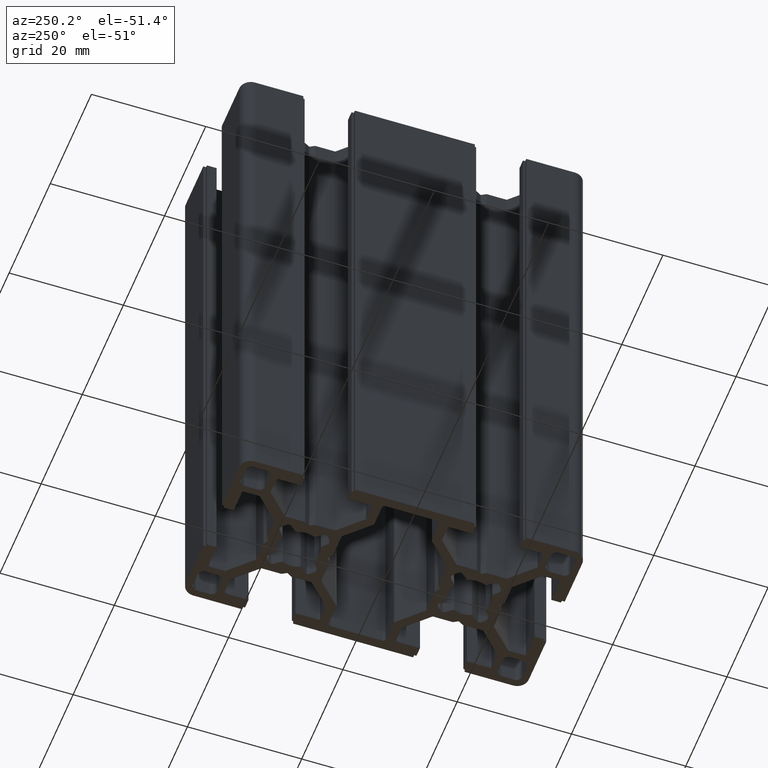
[diagram: clean part render]
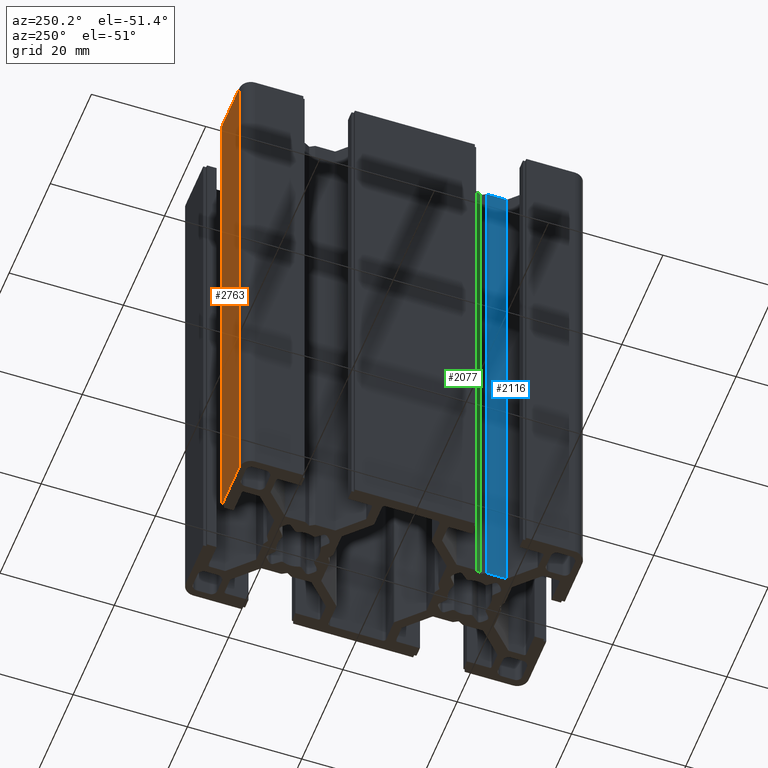
[diagram: same view with three faces highlighted in distinct colors, each labeled with its STEP entity id]
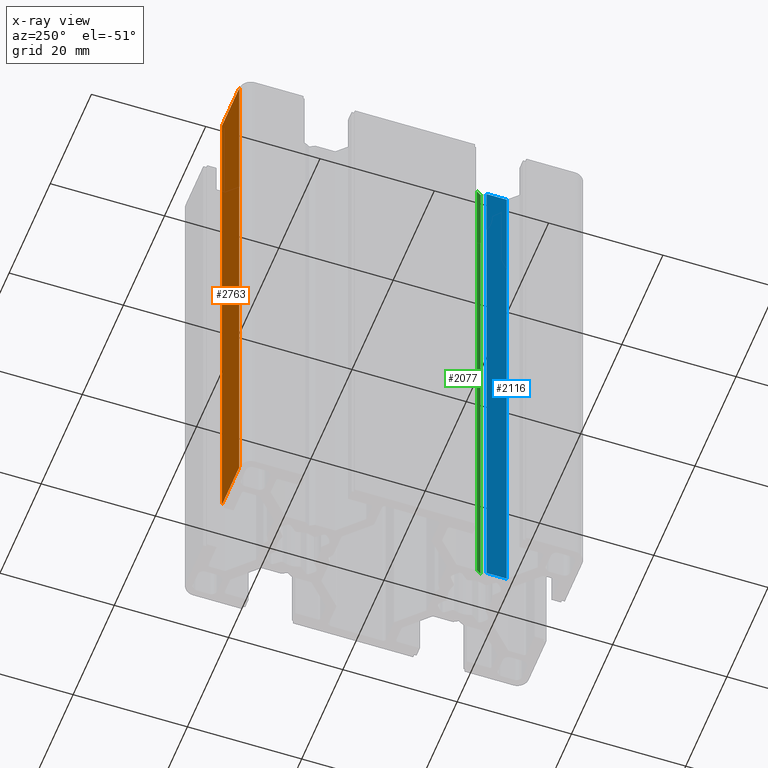
[diagram: x-ray of the same camera — body ghosted, the three highlighted faces saturated]
A machine part, auxiliary view with three faces highlighted in distinct colors.
The next image is the same camera in x-ray (body ghosted, the three faces saturated) — at least one of them is partly hidden behind the body in this view.
Their STEP definitions:

[orange] entity #2763 — the highlighted planar face has unit normal (0, -1, 0).
#475 = VERTEX_POINT ( 'NONE', #3832 ) ;
#901 = VERTEX_POINT ( 'NONE', #4618 ) ;
#915 = EDGE_CURVE ( 'NONE', #901, #475, #4650, .T. ) ;
#1249 = EDGE_CURVE ( 'NONE', #1256, #1321, #5259, .T. ) ;
#1256 = VERTEX_POINT ( 'NONE', #5245 ) ;
#1321 = VERTEX_POINT ( 'NONE', #5357 ) ;
#1870 = EDGE_CURVE ( 'NONE', #475, #1321, #6343, .T. ) ;
#2721 = EDGE_LOOP ( 'NONE', ( #2748, #2762, #2764, #2750 ) ) ;
#2748 = ORIENTED_EDGE ( 'NONE', *, *, #1249, .T. ) ;
#2750 = ORIENTED_EDGE ( 'NONE', *, *, #2757, .T. ) ;
#2757 = EDGE_CURVE ( 'NONE', #901, #1256, #7680, .T. ) ;
#2762 = ORIENTED_EDGE ( 'NONE', *, *, #1870, .F. ) ;
#2763 = ADVANCED_FACE ( 'NONE', ( #7681 ), #7676, .F. ) ;
#2764 = ORIENTED_EDGE ( 'NONE', *, *, #915, .F. ) ;
#3832 = CARTESIAN_POINT ( 'NONE',  ( -13.00000000000000200, 30.00000000000000000, 100.0000000000000000 ) ) ;
#4618 = CARTESIAN_POINT ( 'NONE',  ( -4.499999999999992900, 30.00000000000000000, 100.0000000000000000 ) ) ;
#4638 = DIRECTION ( 'NONE',  ( -1.000000000000000000, 0.0000000000000000000, 0.0000000000000000000 ) ) ;
#4639 = VECTOR ( 'NONE', #4638, 1000.000000000000000 ) ;
#4640 = CARTESIAN_POINT ( 'NONE',  ( -4.499999999999992900, 30.00000000000000000, 100.0000000000000000 ) ) ;
#4650 = LINE ( 'NONE', #4640, #4639 ) ;
#5245 = CARTESIAN_POINT ( 'NONE',  ( -4.499999999999992900, 30.00000000000000000, 0.0000000000000000000 ) ) ;
#5251 = DIRECTION ( 'NONE',  ( -1.000000000000000000, 0.0000000000000000000, 0.0000000000000000000 ) ) ;
#5252 = VECTOR ( 'NONE', #5251, 1000.000000000000000 ) ;
#5253 = CARTESIAN_POINT ( 'NONE',  ( -4.499999999999992900, 30.00000000000000000, 0.0000000000000000000 ) ) ;
#5259 = LINE ( 'NONE', #5253, #5252 ) ;
#5357 = CARTESIAN_POINT ( 'NONE',  ( -13.00000000000000200, 30.00000000000000000, 0.0000000000000000000 ) ) ;
#6342 = CARTESIAN_POINT ( 'NONE',  ( -13.00000000000000200, 30.00000000000000000, 100.0000000000000000 ) ) ;
#6343 = LINE ( 'NONE', #6342, #6395 ) ;
#6394 = DIRECTION ( 'NONE',  ( -0.0000000000000000000, -0.0000000000000000000, -1.000000000000000000 ) ) ;
#6395 = VECTOR ( 'NONE', #6394, 1000.000000000000000 ) ;
#7656 = DIRECTION ( 'NONE',  ( 0.0000000000000000000, -0.0000000000000000000, -1.000000000000000000 ) ) ;
#7657 = DIRECTION ( 'NONE',  ( 0.0000000000000000000, -1.000000000000000000, 0.0000000000000000000 ) ) ;
#7658 = CARTESIAN_POINT ( 'NONE',  ( -4.499999999999992900, 30.00000000000000000, 100.0000000000000000 ) ) ;
#7662 = DIRECTION ( 'NONE',  ( -0.0000000000000000000, -0.0000000000000000000, -1.000000000000000000 ) ) ;
#7663 = VECTOR ( 'NONE', #7662, 1000.000000000000000 ) ;
#7670 = CARTESIAN_POINT ( 'NONE',  ( -4.499999999999992900, 30.00000000000000000, 100.0000000000000000 ) ) ;
#7671 = AXIS2_PLACEMENT_3D ( 'NONE', #7658, #7657, #7656 ) ;
#7676 = PLANE ( 'NONE',  #7671 ) ;
#7680 = LINE ( 'NONE', #7670, #7663 ) ;
#7681 = FACE_OUTER_BOUND ( 'NONE', #2721, .T. ) ;

[blue] entity #2116 — the highlighted planar face has unit normal (1, 0, 0).
#643 = VERTEX_POINT ( 'NONE', #3871 ) ;
#647 = VERTEX_POINT ( 'NONE', #4104 ) ;
#702 = EDGE_CURVE ( 'NONE', #647, #643, #4223, .T. ) ;
#1537 = EDGE_CURVE ( 'NONE', #1555, #1556, #5764, .T. ) ;
#1555 = VERTEX_POINT ( 'NONE', #5777 ) ;
#1556 = VERTEX_POINT ( 'NONE', #5787 ) ;
#2069 = EDGE_CURVE ( 'NONE', #643, #1556, #6661, .T. ) ;
#2115 = ORIENTED_EDGE ( 'NONE', *, *, #2069, .F. ) ;
#2116 = ADVANCED_FACE ( 'NONE', ( #6722 ), #6717, .F. ) ;
#2117 = ORIENTED_EDGE ( 'NONE', *, *, #1537, .T. ) ;
#2119 = ORIENTED_EDGE ( 'NONE', *, *, #2129, .T. ) ;
#2120 = ORIENTED_EDGE ( 'NONE', *, *, #702, .F. ) ;
#2126 = EDGE_LOOP ( 'NONE', ( #2117, #2115, #2120, #2119 ) ) ;
#2129 = EDGE_CURVE ( 'NONE', #647, #1555, #6757, .T. ) ;
#3871 = CARTESIAN_POINT ( 'NONE',  ( -5.799999999999997200, -19.38578643762690100, 100.0000000000000000 ) ) ;
#4104 = CARTESIAN_POINT ( 'NONE',  ( -5.799999999999997200, -15.86602540378443900, 100.0000000000000000 ) ) ;
#4220 = DIRECTION ( 'NONE',  ( -0.0000000000000000000, -1.000000000000000000, -0.0000000000000000000 ) ) ;
#4221 = VECTOR ( 'NONE', #4220, 1000.000000000000000 ) ;
#4222 = CARTESIAN_POINT ( 'NONE',  ( -5.799999999999997200, -19.38578643762690100, 100.0000000000000000 ) ) ;
#4223 = LINE ( 'NONE', #4222, #4221 ) ;
#5742 = DIRECTION ( 'NONE',  ( -0.0000000000000000000, -1.000000000000000000, -0.0000000000000000000 ) ) ;
#5743 = VECTOR ( 'NONE', #5742, 1000.000000000000000 ) ;
#5744 = CARTESIAN_POINT ( 'NONE',  ( -5.799999999999997200, -19.38578643762690100, 0.0000000000000000000 ) ) ;
#5764 = LINE ( 'NONE', #5744, #5743 ) ;
#5777 = CARTESIAN_POINT ( 'NONE',  ( -5.799999999999997200, -15.86602540378443900, 0.0000000000000000000 ) ) ;
#5787 = CARTESIAN_POINT ( 'NONE',  ( -5.799999999999997200, -19.38578643762690100, 0.0000000000000000000 ) ) ;
#6660 = CARTESIAN_POINT ( 'NONE',  ( -5.799999999999997200, -19.38578643762690100, 100.0000000000000000 ) ) ;
#6661 = LINE ( 'NONE', #6660, #6707 ) ;
#6706 = DIRECTION ( 'NONE',  ( -0.0000000000000000000, -0.0000000000000000000, -1.000000000000000000 ) ) ;
#6707 = VECTOR ( 'NONE', #6706, 1000.000000000000000 ) ;
#6713 = DIRECTION ( 'NONE',  ( 0.0000000000000000000, 0.0000000000000000000, -1.000000000000000000 ) ) ;
#6714 = DIRECTION ( 'NONE',  ( 1.000000000000000000, 0.0000000000000000000, 0.0000000000000000000 ) ) ;
#6715 = CARTESIAN_POINT ( 'NONE',  ( -5.799999999999997200, -19.38578643762690100, 100.0000000000000000 ) ) ;
#6716 = AXIS2_PLACEMENT_3D ( 'NONE', #6715, #6714, #6713 ) ;
#6717 = PLANE ( 'NONE',  #6716 ) ;
#6722 = FACE_OUTER_BOUND ( 'NONE', #2126, .T. ) ;
#6754 = DIRECTION ( 'NONE',  ( -0.0000000000000000000, -0.0000000000000000000, -1.000000000000000000 ) ) ;
#6755 = VECTOR ( 'NONE', #6754, 1000.000000000000000 ) ;
#6756 = CARTESIAN_POINT ( 'NONE',  ( -5.799999999999997200, -15.86602540378443900, 100.0000000000000000 ) ) ;
#6757 = LINE ( 'NONE', #6756, #6755 ) ;

[green] entity #2077 — the highlighted planar face has unit normal (0.866, 0.5, -0).
#549 = CARTESIAN_POINT ( 'NONE',  ( -5.299999999999997200, -15.00000000000000000, 100.0000000000000000 ) ) ;
#645 = EDGE_CURVE ( 'NONE', #714, #648, #3839, .T. ) ;
#648 = VERTEX_POINT ( 'NONE', #549 ) ;
#714 = VERTEX_POINT ( 'NONE', #4229 ) ;
#1542 = EDGE_CURVE ( 'NONE', #1546, #1549, #5739, .T. ) ;
#1546 = VERTEX_POINT ( 'NONE', #5740 ) ;
#1549 = VERTEX_POINT ( 'NONE', #5793 ) ;
#2065 = EDGE_CURVE ( 'NONE', #714, #1546, #6659, .T. ) ;
#2075 = EDGE_CURVE ( 'NONE', #648, #1549, #6669, .T. ) ;
#2076 = ORIENTED_EDGE ( 'NONE', *, *, #2075, .F. ) ;
#2077 = ADVANCED_FACE ( 'NONE', ( #6654 ), #6700, .F. ) ;
#2091 = EDGE_LOOP ( 'NONE', ( #2125, #2076, #2128, #2127 ) ) ;
#2125 = ORIENTED_EDGE ( 'NONE', *, *, #1542, .T. ) ;
#2127 = ORIENTED_EDGE ( 'NONE', *, *, #2065, .T. ) ;
#2128 = ORIENTED_EDGE ( 'NONE', *, *, #645, .F. ) ;
#3839 = LINE ( 'NONE', #3881, #3880 ) ;
#3879 = DIRECTION ( 'NONE',  ( 0.5000000000000001100, -0.8660254037844384900, -0.0000000000000000000 ) ) ;
#3880 = VECTOR ( 'NONE', #3879, 1000.000000000000200 ) ;
#3881 = CARTESIAN_POINT ( 'NONE',  ( -5.299999999999997200, -15.00000000000000000, 100.0000000000000000 ) ) ;
#4229 = CARTESIAN_POINT ( 'NONE',  ( -5.799999999999997200, -14.13397459621556300, 100.0000000000000000 ) ) ;
#5058 = DIRECTION ( 'NONE',  ( 0.5000000000000001100, -0.8660254037844384900, -0.0000000000000000000 ) ) ;
#5731 = VECTOR ( 'NONE', #5058, 1000.000000000000200 ) ;
#5732 = CARTESIAN_POINT ( 'NONE',  ( -5.299999999999997200, -15.00000000000000000, 0.0000000000000000000 ) ) ;
#5739 = LINE ( 'NONE', #5732, #5731 ) ;
#5740 = CARTESIAN_POINT ( 'NONE',  ( -5.799999999999997200, -14.13397459621556300, 0.0000000000000000000 ) ) ;
#5793 = CARTESIAN_POINT ( 'NONE',  ( -5.299999999999997200, -15.00000000000000000, 0.0000000000000000000 ) ) ;
#6640 = AXIS2_PLACEMENT_3D ( 'NONE', #6705, #6696, #6695 ) ;
#6652 = CARTESIAN_POINT ( 'NONE',  ( -5.299999999999997200, -15.00000000000000000, 100.0000000000000000 ) ) ;
#6654 = FACE_OUTER_BOUND ( 'NONE', #2091, .T. ) ;
#6656 = DIRECTION ( 'NONE',  ( -0.0000000000000000000, -0.0000000000000000000, -1.000000000000000000 ) ) ;
#6657 = VECTOR ( 'NONE', #6656, 1000.000000000000000 ) ;
#6658 = CARTESIAN_POINT ( 'NONE',  ( -5.799999999999997200, -14.13397459621556300, 100.0000000000000000 ) ) ;
#6659 = LINE ( 'NONE', #6658, #6657 ) ;
#6669 = LINE ( 'NONE', #6652, #6702 ) ;
#6695 = DIRECTION ( 'NONE',  ( -0.5000000000000002200, 0.8660254037844384900, 0.0000000000000000000 ) ) ;
#6696 = DIRECTION ( 'NONE',  ( 0.8660254037844386000, 0.5000000000000003300, -0.0000000000000000000 ) ) ;
#6700 = PLANE ( 'NONE',  #6640 ) ;
#6701 = DIRECTION ( 'NONE',  ( -0.0000000000000000000, -0.0000000000000000000, -1.000000000000000000 ) ) ;
#6702 = VECTOR ( 'NONE', #6701, 1000.000000000000000 ) ;
#6705 = CARTESIAN_POINT ( 'NONE',  ( -5.299999999999997200, -15.00000000000000000, 100.0000000000000000 ) ) ;